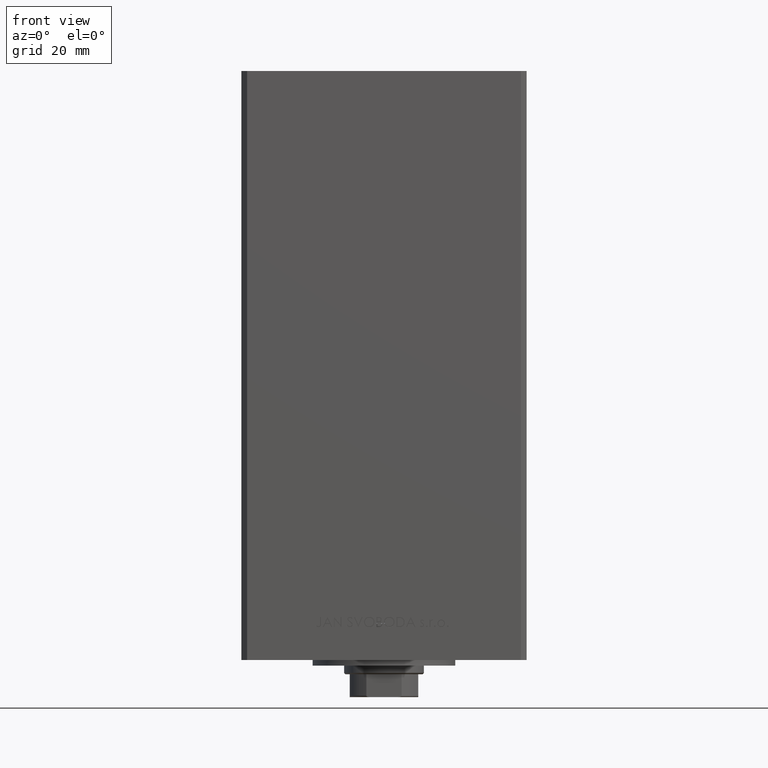
[diagram: clean part render]
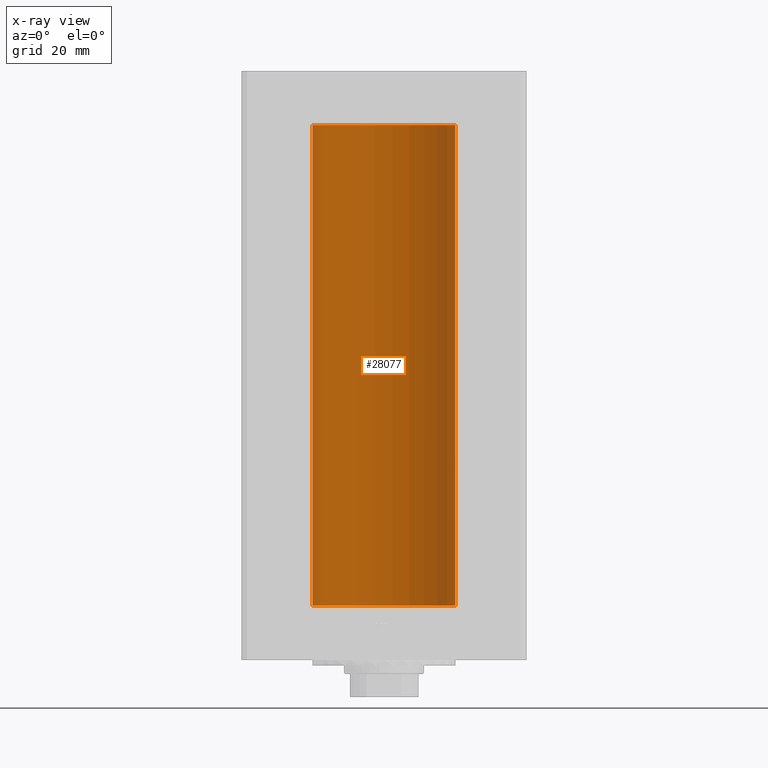
[diagram: x-ray — body ghosted, one internal face saturated and labeled with its STEP entity id]
A machine part, front view, then the same camera in x-ray: the body is ghosted and one INTERNAL B-rep face — a face not visible from any outside direction — is saturated and labeled: STEP entity #28077.
In plain terms, the highlighted cylindrical surface (partial cylindrical patch) has radius 25 mm, axis along (-0, -0, -1).
Its self-contained STEP definition (entity closure, byte-faithful):
#3451 = DIRECTION ( 'NONE',  ( -0.000000000000000000, -0.000000000000000000, -1.000000000000000000 ) ) ;
#6870 = VECTOR ( 'NONE', #16366, 1000.000000000000000 ) ;
#6939 = FACE_OUTER_BOUND ( 'NONE', #28332, .T. ) ;
#8238 = ORIENTED_EDGE ( 'NONE', *, *, #32683, .T. ) ;
#8607 = CIRCLE ( 'NONE', #19748, 25.00000000000000000 ) ;
#9971 = VECTOR ( 'NONE', #41146, 1000.000000000000000 ) ;
#10605 = VERTEX_POINT ( 'NONE', #12231 ) ;
#11312 = ORIENTED_EDGE ( 'NONE', *, *, #30861, .F. ) ;
#11347 = DIRECTION ( 'NONE',  ( -0.000000000000000000, 0.000000000000000000, 1.000000000000000000 ) ) ;
#11838 = CIRCLE ( 'NONE', #30811, 25.00000000000000000 ) ;
#12231 = CARTESIAN_POINT ( 'NONE',  ( -25.00000000000000000, 0.000000000000000000, 0.000000000000000000 ) ) ;
#12670 = VERTEX_POINT ( 'NONE', #14167 ) ;
#12827 = EDGE_CURVE ( 'NONE', #12670, #10605, #31794, .T. ) ;
#14167 = CARTESIAN_POINT ( 'NONE',  ( -25.00000000000000000, 0.000000000000000000, 168.5000000000000000 ) ) ;
#15389 = VERTEX_POINT ( 'NONE', #37131 ) ;
#16366 = DIRECTION ( 'NONE',  ( -0.000000000000000000, -0.000000000000000000, -1.000000000000000000 ) ) ;
#17388 = DIRECTION ( 'NONE',  ( 1.000000000000000000, 0.000000000000000000, 0.000000000000000000 ) ) ;
#19748 = AXIS2_PLACEMENT_3D ( 'NONE', #45427, #11347, #37978 ) ;
#21748 = CARTESIAN_POINT ( 'NONE',  ( 25.00000000000000000, 3.061616997868383043E-15, 168.5000000000000000 ) ) ;
#22126 = CARTESIAN_POINT ( 'NONE',  ( 0.000000000000000000, 0.000000000000000000, 168.5000000000000000 ) ) ;
#23353 = CARTESIAN_POINT ( 'NONE',  ( -25.00000000000000000, 0.000000000000000000, 168.5000000000000000 ) ) ;
#23622 = VERTEX_POINT ( 'NONE', #21748 ) ;
#25992 = LINE ( 'NONE', #36928, #9971 ) ;
#26088 = CARTESIAN_POINT ( 'NONE',  ( 0.000000000000000000, 0.000000000000000000, 0.000000000000000000 ) ) ;
#28077 = ADVANCED_FACE ( 'NONE', ( #6939 ), #40279, .F. ) ;
#28332 = EDGE_LOOP ( 'NONE', ( #32034, #8238, #42164, #11312 ) ) ;
#30811 = AXIS2_PLACEMENT_3D ( 'NONE', #26088, #41236, #17388 ) ;
#30861 = EDGE_CURVE ( 'NONE', #15389, #10605, #11838, .T. ) ;
#31794 = LINE ( 'NONE', #23353, #6870 ) ;
#32034 = ORIENTED_EDGE ( 'NONE', *, *, #46692, .F. ) ;
#32683 = EDGE_CURVE ( 'NONE', #23622, #12670, #8607, .T. ) ;
#33801 = DIRECTION ( 'NONE',  ( -1.000000000000000000, 0.000000000000000000, 0.000000000000000000 ) ) ;
#36928 = CARTESIAN_POINT ( 'NONE',  ( 25.00000000000000000, 3.061616997868383043E-15, 168.5000000000000000 ) ) ;
#37131 = CARTESIAN_POINT ( 'NONE',  ( 25.00000000000000000, 3.061616997868383043E-15, 0.000000000000000000 ) ) ;
#37978 = DIRECTION ( 'NONE',  ( 1.000000000000000000, 0.000000000000000000, 0.000000000000000000 ) ) ;
#40279 = CYLINDRICAL_SURFACE ( 'NONE', #42736, 25.00000000000000000 ) ;
#41146 = DIRECTION ( 'NONE',  ( -0.000000000000000000, -0.000000000000000000, -1.000000000000000000 ) ) ;
#41236 = DIRECTION ( 'NONE',  ( -0.000000000000000000, 0.000000000000000000, 1.000000000000000000 ) ) ;
#42164 = ORIENTED_EDGE ( 'NONE', *, *, #12827, .T. ) ;
#42736 = AXIS2_PLACEMENT_3D ( 'NONE', #22126, #3451, #33801 ) ;
#45427 = CARTESIAN_POINT ( 'NONE',  ( 0.000000000000000000, 0.000000000000000000, 168.5000000000000000 ) ) ;
#46692 = EDGE_CURVE ( 'NONE', #23622, #15389, #25992, .T. ) ;